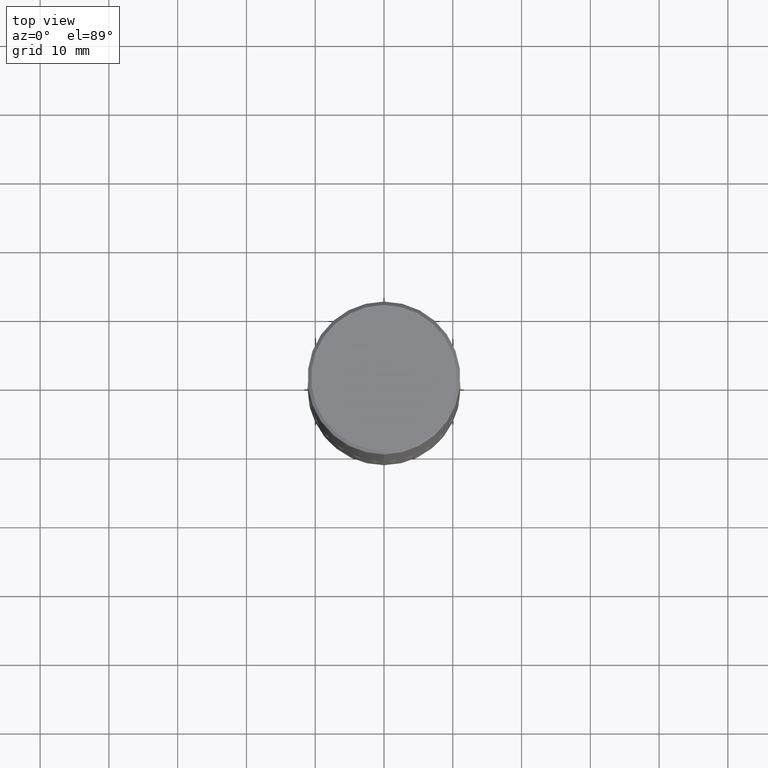
[diagram: clean part render]
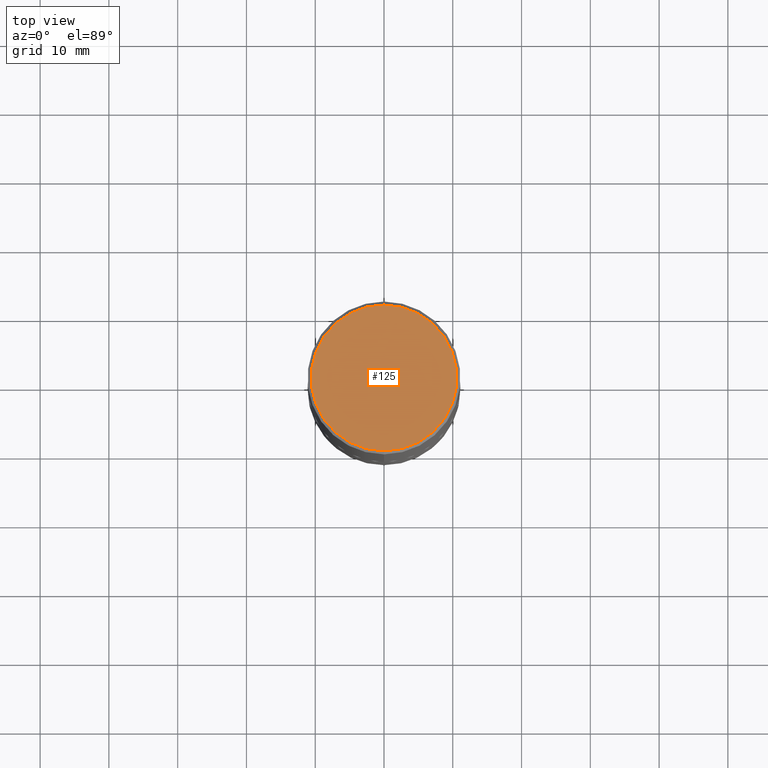
[diagram: same view with one face highlighted and labeled with its STEP entity id]
A machine part, top view. The second image highlights one B-rep face of the part: STEP entity #125.
In plain terms, the highlighted planar face has unit normal (0, -0, -1).
Its self-contained STEP definition (entity closure, byte-faithful):
#27 = CARTESIAN_POINT ( 'NONE',  ( -5.739702864296203553E-45, 8.193965252807117004E-31, 2.346960988282051654E-16 ) ) ;
#31 = AXIS2_PLACEMENT_3D ( 'NONE', #58, #382, #190 ) ;
#32 = CARTESIAN_POINT ( 'NONE',  ( -2.932862894047327755E-15, -0.4174999999999997047, 1.692317469667899733E-15 ) ) ;
#49 = ORIENTED_EDGE ( 'NONE', *, *, #101, .T. ) ;
#52 = CIRCLE ( 'NONE', #31, 0.4174999999999997047 ) ;
#58 = CARTESIAN_POINT ( 'NONE',  ( -5.739702864296203553E-45, 8.193965252807117004E-31, 2.346960988282051654E-16 ) ) ;
#67 = CARTESIAN_POINT ( 'NONE',  ( 2.915386917934013906E-15, 0.4174999999999997047, -1.340273321425592132E-15 ) ) ;
#101 = EDGE_CURVE ( 'NONE', #392, #329, #52, .T. ) ;
#105 = FACE_OUTER_BOUND ( 'NONE', #334, .T. ) ;
#112 = CIRCLE ( 'NONE', #258, 0.4174999999999997047 ) ;
#125 = ADVANCED_FACE ( 'NONE', ( #105 ), #349, .F. ) ;
#136 = EDGE_CURVE ( 'NONE', #329, #392, #112, .T. ) ;
#159 = DIRECTION ( 'NONE',  ( -6.982962677686265922E-15, -1.000000000000000000, 3.491308672669929878E-15 ) ) ;
#190 = DIRECTION ( 'NONE',  ( -6.982962677686265922E-15, -1.000000000000000000, 3.491308672669929878E-15 ) ) ;
#195 = DIRECTION ( 'NONE',  ( -2.445589378329462952E-29, 3.491308672669929878E-15, 1.000000000000000000 ) ) ;
#247 = DIRECTION ( 'NONE',  ( 2.445589378329462671E-29, -3.491308672669929878E-15, -1.000000000000000000 ) ) ;
#258 = AXIS2_PLACEMENT_3D ( 'NONE', #27, #195, #159 ) ;
#290 = AXIS2_PLACEMENT_3D ( 'NONE', #67, #247, #309 ) ;
#309 = DIRECTION ( 'NONE',  ( 6.982962677686265922E-15, 1.000000000000000000, -3.491308672669929878E-15 ) ) ;
#329 = VERTEX_POINT ( 'NONE', #376 ) ;
#334 = EDGE_LOOP ( 'NONE', ( #369, #49 ) ) ;
#349 = PLANE ( 'NONE',  #290 ) ;
#369 = ORIENTED_EDGE ( 'NONE', *, *, #136, .T. ) ;
#376 = CARTESIAN_POINT ( 'NONE',  ( 2.985216544710877599E-15, 0.4174999999999997047, -1.222925272011489402E-15 ) ) ;
#382 = DIRECTION ( 'NONE',  ( -2.445589378329462952E-29, 3.491308672669929878E-15, 1.000000000000000000 ) ) ;
#392 = VERTEX_POINT ( 'NONE', #32 ) ;